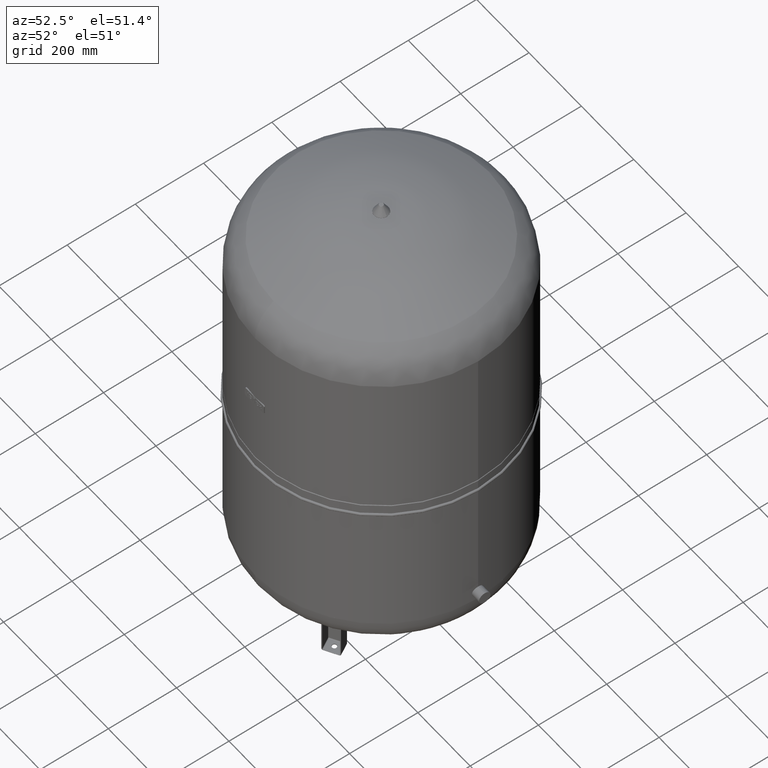
[diagram: clean part render]
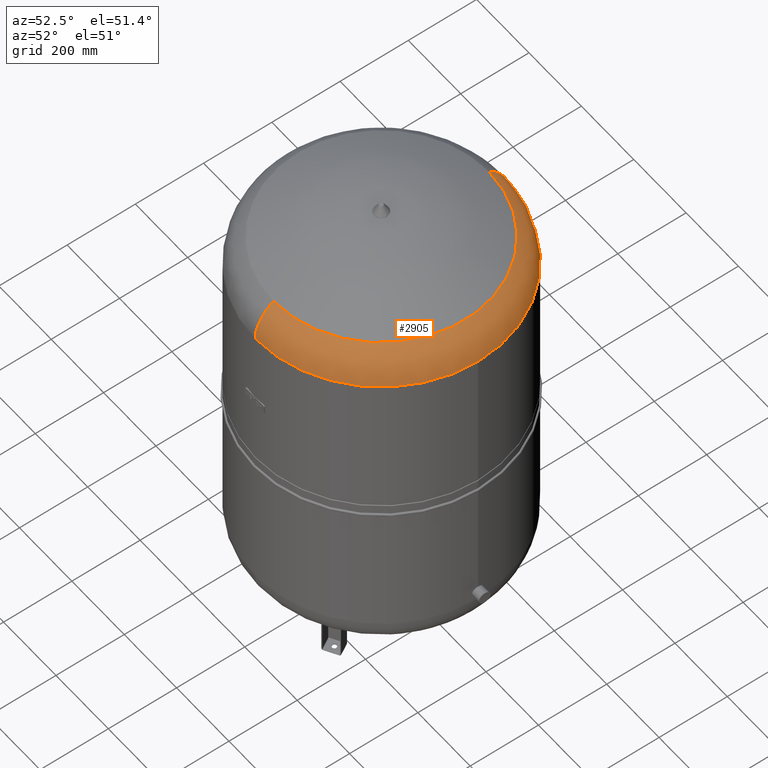
[diagram: same view with one face highlighted and labeled with its STEP entity id]
A machine part, auxiliary view. The second image highlights one B-rep face of the part: STEP entity #2905.
In plain terms, the highlighted face is a freeform B-spline surface patch.
Its self-contained STEP definition (entity closure, byte-faithful):
#2788=CARTESIAN_POINT('',(370.0,1.062956E-014,1101.206120388130600));
#2789=VERTEX_POINT('',#2788);
#2796=CARTESIAN_POINT('',(0.0,-370.000000000000060,1101.206120388130600));
#2797=VERTEX_POINT('',#2796);
#2798=CARTESIAN_POINT('',(0.0,-3.468087E-014,1101.206120388130600));
#2799=DIRECTION('',(0.0,0.0,1.0));
#2800=DIRECTION('',(-1.0,0.0,0.0));
#2801=AXIS2_PLACEMENT_3D('',#2798,#2799,#2800);
#2802=CIRCLE('',#2801,370.0);
#2803=EDGE_CURVE('',#2797,#2789,#2802,.T.);
#2815=CARTESIAN_POINT('',(-1.702203E-014,139.000000000000060,1101.206120388130300));
#2816=CARTESIAN_POINT('',(-1.702203E-014,139.000000000000060,1216.706120388130300));
#2817=CARTESIAN_POINT('',(-3.116623E-014,254.500000000000000,1216.706120388130300));
#2818=CARTESIAN_POINT('',(-4.531044E-014,370.0,1216.706120388130300));
#2819=CARTESIAN_POINT('',(-4.531044E-014,369.999999999999940,1101.206120388130300));
#2820=CARTESIAN_POINT('',(-139.000000000000090,139.0,1101.206120388130300));
#2821=CARTESIAN_POINT('',(-139.000000000000060,139.0,1216.706120388130300));
#2822=CARTESIAN_POINT('',(-254.500000000000000,254.499999999999860,1216.706120388130300));
#2823=CARTESIAN_POINT('',(-370.0,369.999999999999890,1216.706120388130300));
#2824=CARTESIAN_POINT('',(-370.0,369.999999999999890,1101.206120388130300));
#2825=CARTESIAN_POINT('',(-139.000000000000090,-5.170290E-014,1101.206120388130300));
#2826=CARTESIAN_POINT('',(-139.000000000000060,-3.048590E-014,1216.706120388130300));
#2827=CARTESIAN_POINT('',(-254.500000000000000,-4.463010E-014,1216.706120388130300));
#2828=CARTESIAN_POINT('',(-370.0,-5.877430E-014,1216.706120388130300));
#2829=CARTESIAN_POINT('',(-370.0,-7.999131E-014,1101.206120388130300));
#2830=CARTESIAN_POINT('',(-139.000000000000030,-139.000000000000110,1101.206120388130300));
#2831=CARTESIAN_POINT('',(-139.0,-139.000000000000060,1216.706120388130300));
#2832=CARTESIAN_POINT('',(-254.499999999999910,-254.500000000000000,1216.706120388130300));
#2833=CARTESIAN_POINT('',(-369.999999999999890,-370.0,1216.706120388130300));
#2834=CARTESIAN_POINT('',(-369.999999999999890,-370.0,1101.206120388130300));
#2835=CARTESIAN_POINT('',(1.702203E-014,-139.000000000000110,1101.206120388130300));
#2836=CARTESIAN_POINT('',(1.702203E-014,-139.000000000000060,1216.706120388130300));
#2837=CARTESIAN_POINT('',(3.116623E-014,-254.500000000000000,1216.706120388130300));
#2838=CARTESIAN_POINT('',(4.531044E-014,-370.0,1216.706120388130300));
#2839=CARTESIAN_POINT('',(4.531044E-014,-370.000000000000060,1101.206120388130300));
#2840=CARTESIAN_POINT('',(139.000000000000090,-139.000000000000090,1101.206120388130300));
#2841=CARTESIAN_POINT('',(139.000000000000060,-139.000000000000030,1216.706120388130300));
#2842=CARTESIAN_POINT('',(254.500000000000000,-254.499999999999910,1216.706120388130300));
#2843=CARTESIAN_POINT('',(370.0,-369.999999999999890,1216.706120388130300));
#2844=CARTESIAN_POINT('',(370.0,-369.999999999999890,1101.206120388130300));
#2845=CARTESIAN_POINT('',(139.000000000000090,-1.765884E-014,1101.206120388130300));
#2846=CARTESIAN_POINT('',(139.000000000000060,3.558161E-015,1216.706120388130300));
#2847=CARTESIAN_POINT('',(254.500000000000000,1.770236E-014,1216.706120388130300));
#2848=CARTESIAN_POINT('',(370.0,3.184657E-014,1216.706120388130300));
#2849=CARTESIAN_POINT('',(370.0,1.062956E-014,1101.206120388130300));
#2850=CARTESIAN_POINT('',(139.000000000000030,139.000000000000030,1101.206120388130300));
#2851=CARTESIAN_POINT('',(139.0,139.000000000000030,1216.706120388130300));
#2852=CARTESIAN_POINT('',(254.499999999999910,254.500000000000000,1216.706120388130300));
#2853=CARTESIAN_POINT('',(369.999999999999890,370.0,1216.706120388130300));
#2854=CARTESIAN_POINT('',(369.999999999999890,369.999999999999890,1101.206120388130300));
#2855=CARTESIAN_POINT('',(-1.702203E-014,139.000000000000060,1101.206120388130300));
#2856=CARTESIAN_POINT('',(-1.702203E-014,139.000000000000060,1216.706120388130300));
#2857=CARTESIAN_POINT('',(-3.116623E-014,254.500000000000000,1216.706120388130300));
#2858=CARTESIAN_POINT('',(-4.531044E-014,370.0,1216.706120388130300));
#2859=CARTESIAN_POINT('',(-4.531044E-014,369.999999999999940,1101.206120388130300));
#2867=(BOUNDED_SURFACE()B_SPLINE_SURFACE(2,2,((#2815,#2820,#2825,#2830,#2835,#2840,#2845,#2850,#2855),(#2816,#2821,#2826,#2831,#2836,#2841,#2846,#2851,#2856),(#2817,#2822,#2827,#2832,#2837,#2842,#2847,#2852,#2857),(#2818,#2823,#2828,#2833,#2838,#2843,#2848,#2853,#2858),(#2819,#2824,#2829,#2834,#2839,#2844,#2849,#2854,#2859)),.UNSPECIFIED.,.F.,.T.,.U.)B_SPLINE_SURFACE_WITH_KNOTS((3,2,3),(3,2,2,2,3),(-3.141592653589794,-1.570796326794897,5.884666E-016),(0.0,1.570796326794897,3.141592653589793,4.712388980384690,6.283185307179586),.UNSPECIFIED.)GEOMETRIC_REPRESENTATION_ITEM()RATIONAL_B_SPLINE_SURFACE(((1.0,0.707106781186548,1.0,0.707106781186548,1.0,0.707106781186548,1.0,0.707106781186548,1.0),(0.707106781186545,0.499999999999998,0.707106781186545,0.499999999999998,0.707106781186545,0.499999999999998,0.707106781186545,0.499999999999998,0.707106781186545),(1.0,0.707106781186548,1.0,0.707106781186548,1.0,0.707106781186548,1.0,0.707106781186548,1.0),(0.707106781186545,0.499999999999999,0.707106781186545,0.499999999999999,0.707106781186545,0.499999999999999,0.707106781186545,0.499999999999999,0.707106781186545),(1.0,0.707106781186548,1.0,0.707106781186548,1.0,0.707106781186548,1.0,0.707106781186548,1.0)))REPRESENTATION_ITEM('')SURFACE());
#2868=CARTESIAN_POINT('',(0.0,-315.931034482758610,1199.014494274920500));
#2869=VERTEX_POINT('',#2868);
#2870=CARTESIAN_POINT('',(0.0,-254.500000000000060,1101.206120388130300));
#2871=DIRECTION('',(-1.0,0.0,0.0));
#2872=DIRECTION('',(0.0,-1.0,0.0));
#2873=AXIS2_PLACEMENT_3D('',#2870,#2871,#2872);
#2874=CIRCLE('',#2873,115.500000000000000);
#2875=EDGE_CURVE('',#2797,#2869,#2874,.T.);
#2876=ORIENTED_EDGE('',*,*,#2875,.F.);
#2877=ORIENTED_EDGE('',*,*,#2803,.T.);
#2878=CARTESIAN_POINT('',(-4.531044E-014,369.999999999999940,1101.206120388130300));
#2879=VERTEX_POINT('',#2878);
#2880=CARTESIAN_POINT('',(0.0,-3.468087E-014,1101.206120388130600));
#2881=DIRECTION('',(0.0,0.0,1.0));
#2882=DIRECTION('',(-1.0,0.0,0.0));
#2883=AXIS2_PLACEMENT_3D('',#2880,#2881,#2882);
#2884=CIRCLE('',#2883,370.0);
#2885=EDGE_CURVE('',#2789,#2879,#2884,.T.);
#2886=ORIENTED_EDGE('',*,*,#2885,.T.);
#2887=CARTESIAN_POINT('',(-3.868912E-014,315.931034482758610,1199.014494274920300));
#2888=VERTEX_POINT('',#2887);
#2889=CARTESIAN_POINT('',(-3.116623E-014,254.500000000000000,1101.206120388130300));
#2890=DIRECTION('',(1.0,0.0,0.0));
#2891=DIRECTION('',(0.0,1.0,0.0));
#2892=AXIS2_PLACEMENT_3D('',#2889,#2890,#2891);
#2893=CIRCLE('',#2892,115.500000000000000);
#2894=EDGE_CURVE('',#2879,#2888,#2893,.T.);
#2895=ORIENTED_EDGE('',*,*,#2894,.T.);
#2896=CARTESIAN_POINT('',(0.0,-1.671377E-014,1199.014494274920500));
#2897=DIRECTION('',(0.0,0.0,1.0));
#2898=DIRECTION('',(-1.0,0.0,0.0));
#2899=AXIS2_PLACEMENT_3D('',#2896,#2897,#2898);
#2900=CIRCLE('',#2899,315.931034482758610);
#2901=EDGE_CURVE('',#2869,#2888,#2900,.T.);
#2902=ORIENTED_EDGE('',*,*,#2901,.F.);
#2903=EDGE_LOOP('',(#2876,#2877,#2886,#2895,#2902));
#2904=FACE_OUTER_BOUND('',#2903,.T.);
#2905=ADVANCED_FACE('',(#2904),#2867,.T.);